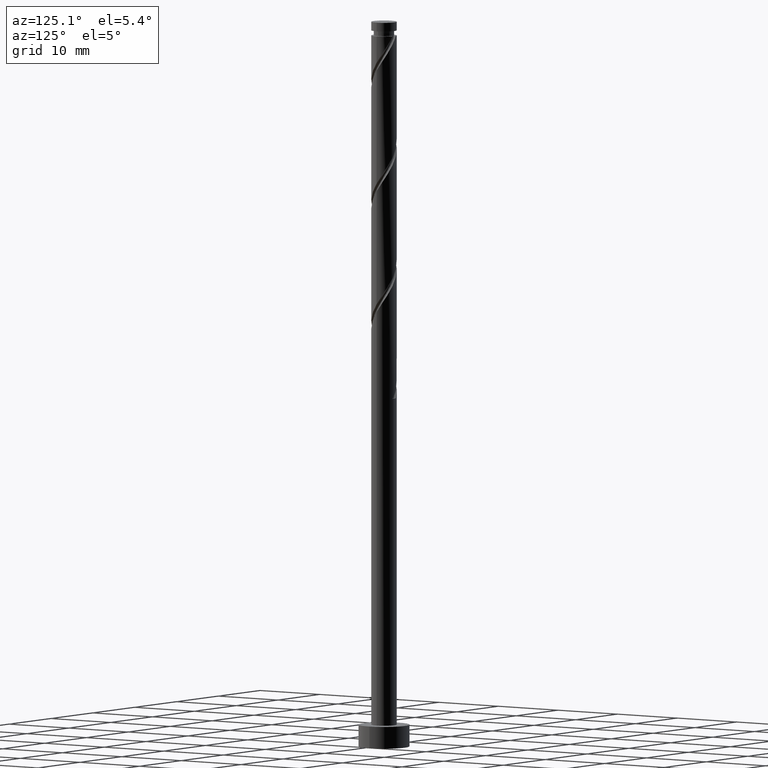
[diagram: clean part render]
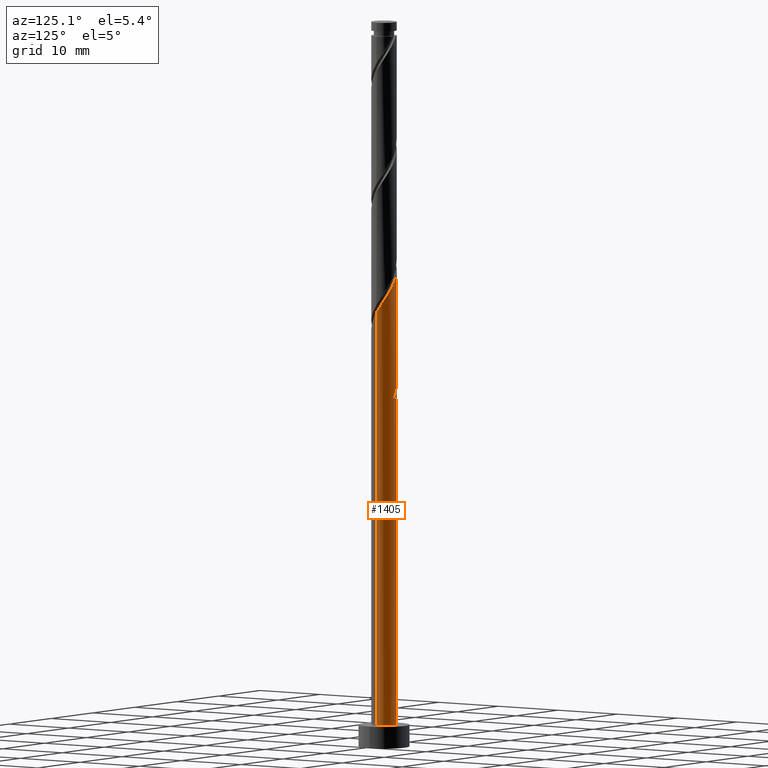
[diagram: same view with one face highlighted and labeled with its STEP entity id]
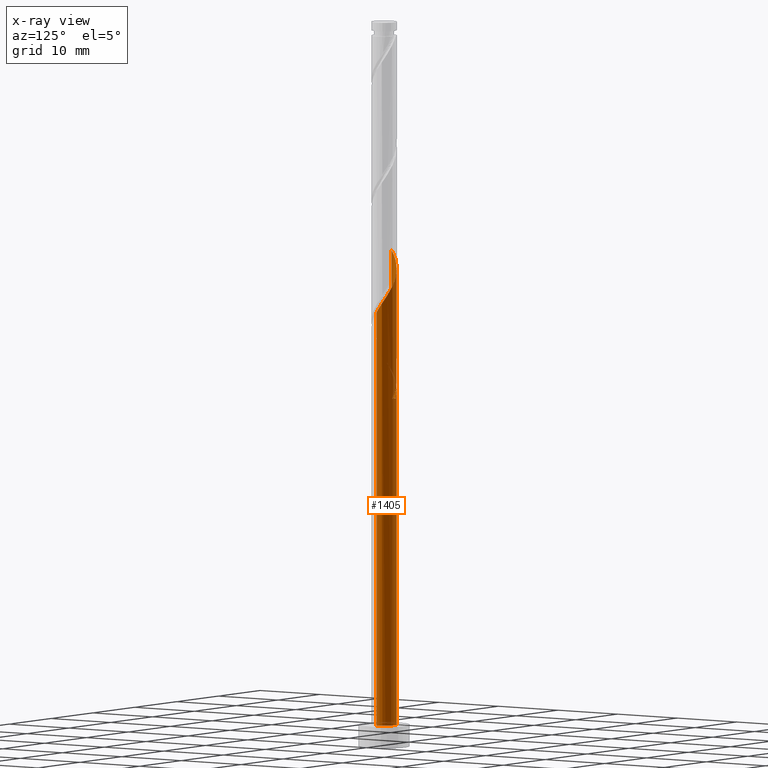
[diagram: x-ray of the same camera — body ghosted, the highlighted face saturated]
A machine part, auxiliary view. The second image highlights one B-rep face of the part: STEP entity #1405.
The next image is the same camera in x-ray: the body ghosted, the highlighted face saturated — about 0% of this face is hidden behind the body in this view.
In plain terms, the highlighted cylindrical surface (edge-blend (fillet) strip) has radius 1.75 mm, axis along (-0, -0, -1).
Its self-contained STEP definition (entity closure, byte-faithful):
#2 = CARTESIAN_POINT ( 'NONE',  ( -1.749999999999999778, -1.045727658282564772E-15, 52.80388164737833279 ) ) ;
#9 = AXIS2_PLACEMENT_3D ( 'NONE', #1161, #147, #192 ) ;
#20 = CARTESIAN_POINT ( 'NONE',  ( -1.750000000000000000, -1.045727658282564772E-15, 52.80388164737833279 ) ) ;
#28 = ORIENTED_EDGE ( 'NONE', *, *, #632, .T. ) ;
#46 = CARTESIAN_POINT ( 'NONE',  ( 1.750000000000000000, 2.143131898507867804E-16, 3.000000000000000000 ) ) ;
#64 = CARTESIAN_POINT ( 'NONE',  ( -1.750000000000002442, 1.471488204869028877E-15, 51.74217187073413271 ) ) ;
#70 = CARTESIAN_POINT ( 'NONE',  ( -0.9138083691518432694, 1.492465833601578806, 49.03228601831549582 ) ) ;
#73 = CARTESIAN_POINT ( 'NONE',  ( -0.04584483107229913451, 1.776405095719755689, 64.31006379609328860 ) ) ;
#76 = CARTESIAN_POINT ( 'NONE',  ( -1.750000000000000666, 0.2853451506858042941, 51.31225235836851795 ) ) ;
#85 = CARTESIAN_POINT ( 'NONE',  ( -1.176970363401352637, 1.331336762922908035, 49.49524898127847905 ) ) ;
#97 = CARTESIAN_POINT ( 'NONE',  ( 0.2593207224552029899, 1.730679855694090330, 63.84710083313029116 ) ) ;
#137 =( BOUNDED_CURVE ( )  B_SPLINE_CURVE ( 2, ( #198, #1334, #428, #297, #1458, #1090, #414, #208, #1218, #1320, #97, #73, #1231, #652, #1314, #315, #747, #556, #658, #864, #994 ),
 .UNSPECIFIED., .F., .T. ) 
 B_SPLINE_CURVE_WITH_KNOTS ( ( 3, 2, 2, 2, 2, 2, 2, 2, 2, 2, 3 ),
 ( 0.1795248053855288961, 0.1805555555555555802, 0.1944444444444444198, 0.2083333333333333703, 0.2222222222222222099, 0.2361111111111111605, 0.2500000000000000000, 0.2638888888888888395, 0.2777777777777777901, 0.2916666666666666297, 0.3045248053855288961 ),
 .UNSPECIFIED. ) 
 CURVE ( )  GEOMETRIC_REPRESENTATION_ITEM ( )  RATIONAL_B_SPLINE_CURVE ( ( 0.9071930855141262517, 0.9080659294509739743, 0.9090909090909141677, 0.8952797754656484086, 0.9090909090909141677, 0.8952797754656484086, 0.9090909090909141677, 0.8952797754656484086, 0.9090909090909141677, 0.8952797754656484086, 0.9090909090909141677, 0.8952797754656484086, 0.9090909090909141677, 0.8952797754656484086, 0.9090909090909141677, 0.8952797754656484086, 0.9090909090909141677, 0.8952797754656484086, 0.9090909090909141677, 0.8963047551055886020, 0.9071930855141262517 ) ) 
 REPRESENTATION_ITEM ( '' )  );
#143 = CARTESIAN_POINT ( 'NONE',  ( -0.2593207224552012691, 1.730679855694088776, 49.03228601831548872 ) ) ;
#147 = DIRECTION ( 'NONE',  ( -0.000000000000000000, -0.000000000000000000, -1.000000000000000000 ) ) ;
#157 = ORIENTED_EDGE ( 'NONE', *, *, #363, .F. ) ;
#166 = LINE ( 'NONE', #1171, #425 ) ;
#192 = DIRECTION ( 'NONE',  ( -1.000000000000000000, 0.000000000000000000, 0.000000000000000000 ) ) ;
#198 = CARTESIAN_POINT ( 'NONE',  ( 1.750000000000002442, -1.478957688142475436E-15, 60.07550520406746841 ) ) ;
#201 = CARTESIAN_POINT ( 'NONE',  ( -0.3482456029873165493, 1.715000000000002078, 48.10636009238957200 ) ) ;
#208 = CARTESIAN_POINT ( 'NONE',  ( 1.106732007224026537, 1.390273741685801534, 62.45821194424143386 ) ) ;
#258 = CARTESIAN_POINT ( 'NONE',  ( -1.750000000000002442, 1.471488204869028877E-15, 51.74217187073413271 ) ) ;
#260 =( BOUNDED_CURVE ( )  B_SPLINE_CURVE ( 2, ( #2, #559, #470, #920, #1381, #355, #1260, #1339, #778, #1116, #143, #1420, #944 ),
 .UNSPECIFIED., .F., .T. ) 
 B_SPLINE_CURVE_WITH_KNOTS ( ( 3, 2, 2, 2, 2, 2, 3 ),
 ( 0.9295248053855290626, 0.9305555555555555802, 0.9444444444444444198, 0.9583333333333333703, 0.9722222222222222099, 0.9861111111111111605, 1.000000000000000000 ),
 .UNSPECIFIED. ) 
 CURVE ( )  GEOMETRIC_REPRESENTATION_ITEM ( )  RATIONAL_B_SPLINE_CURVE ( ( 0.9071930855141210337, 0.9080659294509687562, 0.9090909090909088386, 0.8952797754656434126, 0.9090909090909088386, 0.8952797754656434126, 0.9090909090909088386, 0.8952797754656434126, 0.9090909090909088386, 0.8952797754656434126, 0.9090909090909088386, 0.8952797754656434126, 0.9090909090909088386 ) ) 
 REPRESENTATION_ITEM ( '' )  );
#261 = CIRCLE ( 'NONE', #402, 1.750000000000000000 ) ;
#294 = CARTESIAN_POINT ( 'NONE',  ( -0.6506463749023351228, 1.653594904280250244, 48.56932305535254812 ) ) ;
#297 = CARTESIAN_POINT ( 'NONE',  ( 1.741456639384055149, 0.3536178527455194343, 60.60636009238957911 ) ) ;
#315 = CARTESIAN_POINT ( 'NONE',  ( -1.176970363401352637, 1.331336762922908035, 66.16191564794516466 ) ) ;
#336 = ORIENTED_EDGE ( 'NONE', *, *, #583, .F. ) ;
#355 = CARTESIAN_POINT ( 'NONE',  ( -1.515489524769283225, 0.9279053362006939309, 51.34710083313030538 ) ) ;
#360 = ORIENTED_EDGE ( 'NONE', *, *, #610, .T. ) ;
#363 = EDGE_CURVE ( 'NONE', #1375, #1166, #718, .T. ) ;
#389 = CARTESIAN_POINT ( 'NONE',  ( -1.750000000000002442, 1.471488204869028877E-15, 68.40883853740079701 ) ) ;
#391 = EDGE_CURVE ( 'NONE', #1127, #1166, #1154, .T. ) ;
#399 = VERTEX_POINT ( 'NONE', #389 ) ;
#402 = AXIS2_PLACEMENT_3D ( 'NONE', #996, #1080, #973 ) ;
#414 = CARTESIAN_POINT ( 'NONE',  ( 1.311110765996655214, 1.159089538943247844, 61.99524898127845773 ) ) ;
#425 = VECTOR ( 'NONE', #1285, 1000.000000000000000 ) ;
#428 = CARTESIAN_POINT ( 'NONE',  ( 1.749417510755208127, 0.04514834507553524418, 60.14339712942660299 ) ) ;
#470 = CARTESIAN_POINT ( 'NONE',  ( -1.749417510755205463, 0.04514834507553545928, 52.73598972201920532 ) ) ;
#482 = VERTEX_POINT ( 'NONE', #1156 ) ;
#514 = DIRECTION ( 'NONE',  ( 1.000000000000000000, 0.000000000000000000, 0.000000000000000000 ) ) ;
#540 = CARTESIAN_POINT ( 'NONE',  ( -0.3482456029873165493, 1.715000000000002078, 48.10636009238957200 ) ) ;
#556 = CARTESIAN_POINT ( 'NONE',  ( -1.561334355841584864, 0.8484997595190604258, 67.08784157387108849 ) ) ;
#558 = VERTEX_POINT ( 'NONE', #540 ) ;
#559 = CARTESIAN_POINT ( 'NONE',  ( -1.749999999999999778, 0.02257793008103632301, 52.76986427344597530 ) ) ;
#583 = EDGE_CURVE ( 'NONE', #558, #1375, #1271, .T. ) ;
#610 = EDGE_CURVE ( 'NONE', #482, #1127, #1448, .T. ) ;
#615 = ORIENTED_EDGE ( 'NONE', *, *, #1450, .F. ) ;
#632 = EDGE_CURVE ( 'NONE', #558, #961, #261, .T. ) ;
#652 = CARTESIAN_POINT ( 'NONE',  ( -0.6506463749023351228, 1.653594904280250244, 65.23598972201921242 ) ) ;
#655 = CARTESIAN_POINT ( 'NONE',  ( -1.561334355841584864, 0.8484997595190604258, 50.42117490720440998 ) ) ;
#658 = CARTESIAN_POINT ( 'NONE',  ( -1.659356368983972763, 0.5559104610567547899, 67.55080453683400776 ) ) ;
#706 = CYLINDRICAL_SURFACE ( 'NONE', #9, 1.750000000000000000 ) ;
#718 = LINE ( 'NONE', #1063, #975 ) ;
#724 = ORIENTED_EDGE ( 'NONE', *, *, #1052, .F. ) ;
#747 = CARTESIAN_POINT ( 'NONE',  ( -1.369152359621468085, 1.089918261220983897, 66.62487861090806973 ) ) ;
#778 = CARTESIAN_POINT ( 'NONE',  ( -0.8356091416033630814, 1.537614178677112253, 49.95821194424143386 ) ) ;
#842 = DIRECTION ( 'NONE',  ( 0.000000000000000000, 0.000000000000000000, 1.000000000000000000 ) ) ;
#847 = ORIENTED_EDGE ( 'NONE', *, *, #391, .T. ) ;
#861 = CARTESIAN_POINT ( 'NONE',  ( -1.369152359621468085, 1.089918261220983897, 49.95821194424141254 ) ) ;
#864 = CARTESIAN_POINT ( 'NONE',  ( -1.750000000000001110, 0.2853451506858036835, 67.97891902503521067 ) ) ;
#888 = ORIENTED_EDGE ( 'NONE', *, *, #968, .F. ) ;
#920 = CARTESIAN_POINT ( 'NONE',  ( -1.741456639384053151, 0.3536178527455194898, 52.27302675905623630 ) ) ;
#944 = CARTESIAN_POINT ( 'NONE',  ( 0.3482456029873172709, 1.715000000000000080, 48.10636009238956490 ) ) ;
#961 = VERTEX_POINT ( 'NONE', #1132 ) ;
#968 = EDGE_CURVE ( 'NONE', #1028, #961, #260, .T. ) ;
#972 = CARTESIAN_POINT ( 'NONE',  ( -1.750000000000000000, 0.000000000000000000, 3.000000000000000000 ) ) ;
#973 = DIRECTION ( 'NONE',  ( 0.000000000000000000, 1.000000000000000000, -1.189524669241239105E-14 ) ) ;
#975 = VECTOR ( 'NONE', #1301, 1000.000000000000000 ) ;
#980 = DIRECTION ( 'NONE',  ( -0.000000000000000000, -0.000000000000000000, -1.000000000000000000 ) ) ;
#985 = CARTESIAN_POINT ( 'NONE',  ( -1.659356368983972763, 0.5559104610567547899, 50.88413787016735768 ) ) ;
#994 = CARTESIAN_POINT ( 'NONE',  ( -1.750000000000002442, 1.471488204869029074E-15, 68.40883853740079701 ) ) ;
#996 = CARTESIAN_POINT ( 'NONE',  ( 0.000000000000000000, 0.000000000000000000, 48.10636009238958621 ) ) ;
#1028 = VERTEX_POINT ( 'NONE', #20 ) ;
#1049 = CARTESIAN_POINT ( 'NONE',  ( 0.000000000000000000, 0.000000000000000000, 3.000000000000000000 ) ) ;
#1052 = EDGE_CURVE ( 'NONE', #399, #1028, #166, .T. ) ;
#1063 = CARTESIAN_POINT ( 'NONE',  ( -1.750000000000000000, 0.000000000000000000, 100.0000000000000000 ) ) ;
#1080 = DIRECTION ( 'NONE',  ( 0.000000000000000000, -9.912705577010333241E-15, -1.000000000000000000 ) ) ;
#1090 = CARTESIAN_POINT ( 'NONE',  ( 1.515489524769286334, 0.9279053362006937089, 61.53228601831550293 ) ) ;
#1107 = VECTOR ( 'NONE', #980, 1000.000000000000000 ) ;
#1116 = CARTESIAN_POINT ( 'NONE',  ( -0.5644862759827016241, 1.684954615668426081, 49.49524898127846484 ) ) ;
#1127 = VERTEX_POINT ( 'NONE', #46 ) ;
#1132 = CARTESIAN_POINT ( 'NONE',  ( 0.3482456029873172709, 1.715000000000000080, 48.10636009238957200 ) ) ;
#1154 = CIRCLE ( 'NONE', #1342, 1.750000000000000000 ) ;
#1156 = CARTESIAN_POINT ( 'NONE',  ( 1.750000000000002442, -1.478957688142475633E-15, 60.07550520406746841 ) ) ;
#1161 = CARTESIAN_POINT ( 'NONE',  ( 0.000000000000000000, 0.000000000000000000, 100.0000000000000000 ) ) ;
#1166 = VERTEX_POINT ( 'NONE', #972 ) ;
#1171 = CARTESIAN_POINT ( 'NONE',  ( -1.750000000000000000, 0.000000000000000000, 100.0000000000000000 ) ) ;
#1196 = FACE_OUTER_BOUND ( 'NONE', #1257, .T. ) ;
#1218 = CARTESIAN_POINT ( 'NONE',  ( 0.8356091416033648578, 1.537614178677113808, 62.92117490720439577 ) ) ;
#1231 = CARTESIAN_POINT ( 'NONE',  ( -0.3482456029873165493, 1.715000000000002078, 64.77302675905625051 ) ) ;
#1257 = EDGE_LOOP ( 'NONE', ( #615, #360, #847, #157, #336, #28, #888, #724 ) ) ;
#1260 = CARTESIAN_POINT ( 'NONE',  ( -1.311110765996653438, 1.159089538943246733, 50.88413787016735057 ) ) ;
#1271 =( BOUNDED_CURVE ( )  B_SPLINE_CURVE ( 2, ( #201, #294, #70, #85, #861, #655, #985, #76, #64 ),
 .UNSPECIFIED., .F., .T. ) 
 B_SPLINE_CURVE_WITH_KNOTS ( ( 3, 2, 2, 2, 3 ),
 ( 0.000000000000000000, 0.01388888888888884128, 0.02777777777777779011, 0.04166666666666662966, 0.05452480538552886835 ),
 .UNSPECIFIED. ) 
 CURVE ( )  GEOMETRIC_REPRESENTATION_ITEM ( )  RATIONAL_B_SPLINE_CURVE ( ( 0.9090909090909141677, 0.8952797754656484086, 0.9090909090909141677, 0.8952797754656484086, 0.9090909090909141677, 0.8952797754656484086, 0.9090909090909141677, 0.8963047551055887130, 0.9071930855141260297 ) ) 
 REPRESENTATION_ITEM ( '' )  );
#1285 = DIRECTION ( 'NONE',  ( -0.000000000000000000, -0.000000000000000000, -1.000000000000000000 ) ) ;
#1301 = DIRECTION ( 'NONE',  ( -0.000000000000000000, -0.000000000000000000, -1.000000000000000000 ) ) ;
#1314 = CARTESIAN_POINT ( 'NONE',  ( -0.9138083691518432694, 1.492465833601578806, 65.69895268498216012 ) ) ;
#1320 = CARTESIAN_POINT ( 'NONE',  ( 0.5644862759827036225, 1.684954615668427635, 63.38413787016736478 ) ) ;
#1334 = CARTESIAN_POINT ( 'NONE',  ( 1.750000000000002220, 0.02257793008103234356, 60.10952257799981879 ) ) ;
#1339 = CARTESIAN_POINT ( 'NONE',  ( -1.106732007224024983, 1.390273741685799092, 50.42117490720440287 ) ) ;
#1342 = AXIS2_PLACEMENT_3D ( 'NONE', #1049, #842, #514 ) ;
#1375 = VERTEX_POINT ( 'NONE', #258 ) ;
#1381 = CARTESIAN_POINT ( 'NONE',  ( -1.628473082076667966, 0.6407615944731065438, 51.81006379609326018 ) ) ;
#1405 = ADVANCED_FACE ( 'NONE', ( #1196 ), #706, .T. ) ;
#1420 = CARTESIAN_POINT ( 'NONE',  ( 0.04584483107229932880, 1.776405095719752136, 48.56932305535253391 ) ) ;
#1448 = LINE ( 'NONE', #1454, #1107 ) ;
#1450 = EDGE_CURVE ( 'NONE', #482, #399, #137, .T. ) ;
#1454 = CARTESIAN_POINT ( 'NONE',  ( 1.750000000000000000, 2.143131898507867804E-16, 100.0000000000000000 ) ) ;
#1458 = CARTESIAN_POINT ( 'NONE',  ( 1.628473082076670186, 0.6407615944731065438, 61.06932305535251970 ) ) ;